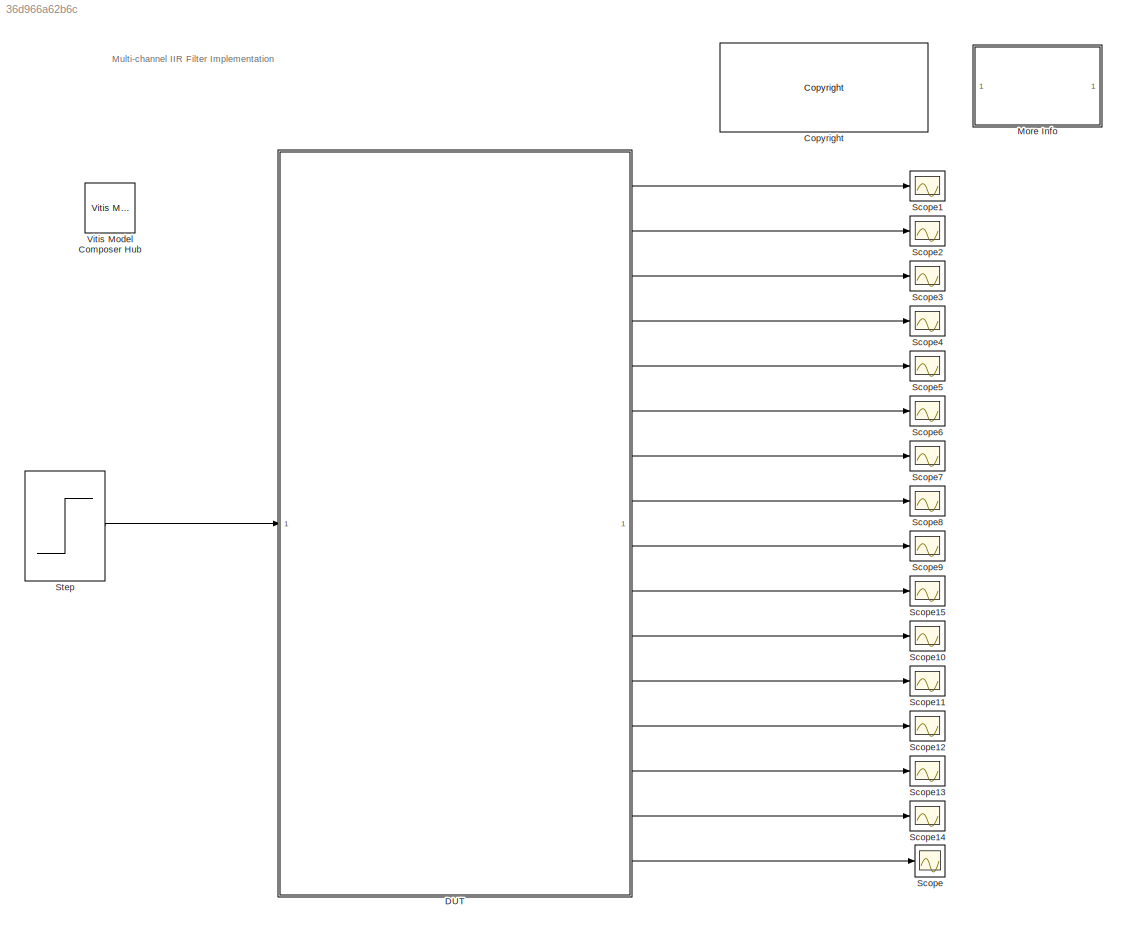
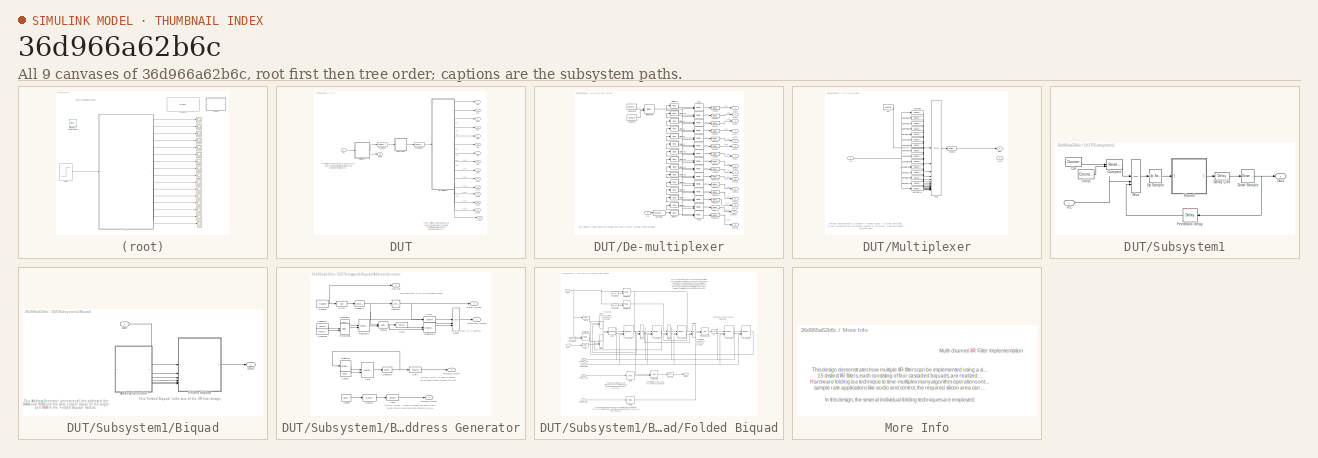
[diagram: thumbnail index - all 9 canvases of the model, root first then tree order]
MODEL slx_36d966a62b6c
KIND model
CONFIG AbsTol = auto
CONFIG EnableMultiTasking = on
CONFIG FixedStep = auto
CONFIG MaxStep = auto
CONFIG MinStep = auto
CONFIG PreLoadFcn = IIR_PreLoadFcn
CONFIG RelTol = 1e-3
CONFIG SampleTimeConstraint = Unconstrained
CONFIG SolverName = ode45
CONFIG StartTime = 0.0
CONFIG StopTime = 10000
BLOCK [Reference] <copyright redacted>
  SourceBlock = hdlUtilities/<copyright redacted>
  SourceType = Xilinx <copyright redacted>
BLOCK [SubSystem] DUT
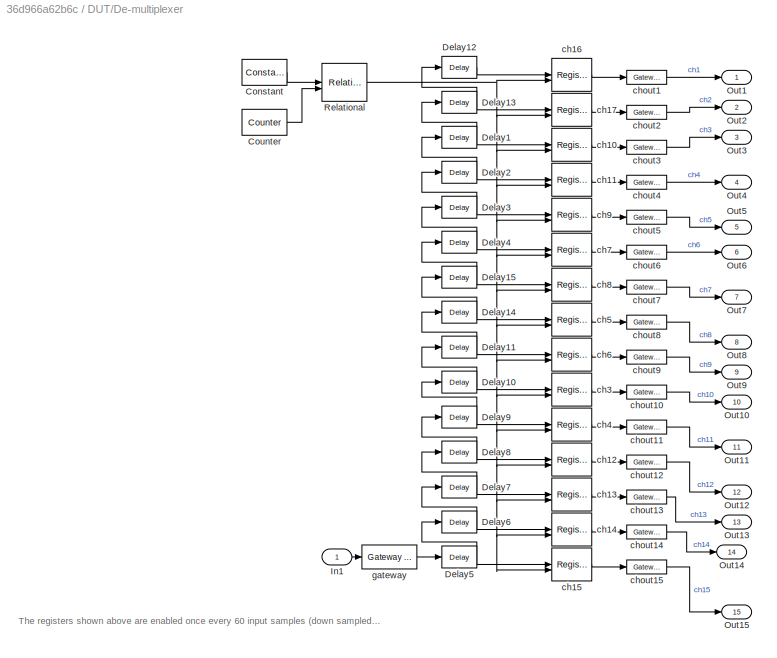
BLOCK [SubSystem] DUT/De-multiplexer
  NameLocation = right
  PortSchema = {"entries":[{"content":{"sides":[{"content":{"connectorIds":["In1"]},"type":"ConnectorPlacement.EquallySpacedRectSide","uuid":"3b4ff2fd-50a8-43bd-9bae-2460b1030825"},{"content":{"connectorIds":["Out1","Out2","Out3","Out4","Out5","Out6","Out7","Out8","Out9","Out10","Out11"],"side":"RIGHT"},"type":"ConnectorPlacement.EquallySpacedRectSide","uuid":"e1c9733d-22c8-4d91-9bdb-dd885a91145e"},{"content":{"...<+487ch>
BLOCK [Reference] DUT/De-multiplexer/Constant  REF=hdlBasic/Constant
  NameLocation = top
  SourceBlock = hdlBasic/Constant
  SourceType = Constant Block Block
BLOCK [Reference] DUT/De-multiplexer/Counter  REF=hdlBasic/Counter
  SourceBlock = hdlBasic/Counter
  SourceType = Counter Block
BLOCK [Reference] DUT/De-multiplexer/Delay1  REF=hdlBasic/Delay
  NameLocation = top
  SourceBlock = hdlBasic/Delay
  SourceType = Delay Block
BLOCK [Reference] DUT/De-multiplexer/Delay10  REF=hdlBasic/Delay
  NameLocation = top
  SourceBlock = hdlBasic/Delay
  SourceType = Delay Block
BLOCK [Reference] DUT/De-multiplexer/Delay11  REF=hdlBasic/Delay
  NameLocation = top
  SourceBlock = hdlBasic/Delay
  SourceType = Delay Block
BLOCK [Reference] DUT/De-multiplexer/Delay12  REF=hdlBasic/Delay
  NameLocation = top
  SourceBlock = hdlBasic/Delay
  SourceType = Delay Block
BLOCK [Reference] DUT/De-multiplexer/Delay13  REF=hdlBasic/Delay
  NameLocation = top
  SourceBlock = hdlBasic/Delay
  SourceType = Delay Block
BLOCK [Reference] DUT/De-multiplexer/Delay14  REF=hdlBasic/Delay
  NameLocation = top
  SourceBlock = hdlBasic/Delay
  SourceType = Delay Block
BLOCK [Reference] DUT/De-multiplexer/Delay15  REF=hdlBasic/Delay
  NameLocation = top
  SourceBlock = hdlBasic/Delay
  SourceType = Delay Block
BLOCK [Reference] DUT/De-multiplexer/Delay2  REF=hdlBasic/Delay
  NameLocation = top
  SourceBlock = hdlBasic/Delay
  SourceType = Delay Block
BLOCK [Reference] DUT/De-multiplexer/Delay3  REF=hdlBasic/Delay
  NameLocation = top
  SourceBlock = hdlBasic/Delay
  SourceType = Delay Block
BLOCK [Reference] DUT/De-multiplexer/Delay4  REF=hdlBasic/Delay
  NameLocation = top
  SourceBlock = hdlBasic/Delay
  SourceType = Delay Block
BLOCK [Reference] DUT/De-multiplexer/Delay5  REF=hdlBasic/Delay
  NameLocation = top
  SourceBlock = hdlBasic/Delay
  SourceType = Delay Block
BLOCK [Reference] DUT/De-multiplexer/Delay6  REF=hdlBasic/Delay
  NameLocation = top
  SourceBlock = hdlBasic/Delay
  SourceType = Delay Block
BLOCK [Reference] DUT/De-multiplexer/Delay7  REF=hdlBasic/Delay
  NameLocation = top
  SourceBlock = hdlBasic/Delay
  SourceType = Delay Block
BLOCK [Reference] DUT/De-multiplexer/Delay8  REF=hdlBasic/Delay
  NameLocation = top
  SourceBlock = hdlBasic/Delay
  SourceType = Delay Block
BLOCK [Reference] DUT/De-multiplexer/Delay9  REF=hdlBasic/Delay
  NameLocation = top
  SourceBlock = hdlBasic/Delay
  SourceType = Delay Block
BLOCK [Inport] DUT/De-multiplexer/In1
BLOCK [Outport] DUT/De-multiplexer/Out1
BLOCK [Outport] DUT/De-multiplexer/Out10
  Port = 10
BLOCK [Outport] DUT/De-multiplexer/Out11
  Port = 11
BLOCK [Outport] DUT/De-multiplexer/Out12
  Port = 12
BLOCK [Outport] DUT/De-multiplexer/Out13
  Port = 13
BLOCK [Outport] DUT/De-multiplexer/Out14
  Port = 14
BLOCK [Outport] DUT/De-multiplexer/Out15
  Port = 15
BLOCK [Outport] DUT/De-multiplexer/Out2
  Port = 2
BLOCK [Outport] DUT/De-multiplexer/Out3
  Port = 3
BLOCK [Outport] DUT/De-multiplexer/Out4
  Port = 4
BLOCK [Outport] DUT/De-multiplexer/Out5
  Port = 5
BLOCK [Outport] DUT/De-multiplexer/Out6
  Port = 6
BLOCK [Outport] DUT/De-multiplexer/Out7
  Port = 7
BLOCK [Outport] DUT/De-multiplexer/Out8
  Port = 8
BLOCK [Outport] DUT/De-multiplexer/Out9
  Port = 9
BLOCK [Reference] DUT/De-multiplexer/Relational  REF=hdlBasic/Relational
  SourceBlock = hdlBasic/Relational
  SourceType = Arithmetic Relational Operator Block
BLOCK [Reference] DUT/De-multiplexer/ch10  REF=hdlBasic/Register
  SourceBlock = hdlBasic/Register
  SourceType = Register Block
BLOCK [Reference] DUT/De-multiplexer/ch11  REF=hdlBasic/Register
  SourceBlock = hdlBasic/Register
  SourceType = Register Block
BLOCK [Reference] DUT/De-multiplexer/ch12  REF=hdlBasic/Register
  SourceBlock = hdlBasic/Register
  SourceType = Register Block
BLOCK [Reference] DUT/De-multiplexer/ch13  REF=hdlBasic/Register
  SourceBlock = hdlBasic/Register
  SourceType = Register Block
BLOCK [Reference] DUT/De-multiplexer/ch14  REF=hdlBasic/Register
  SourceBlock = hdlBasic/Register
  SourceType = Register Block
BLOCK [Reference] DUT/De-multiplexer/ch15  REF=hdlBasic/Register
  SourceBlock = hdlBasic/Register
  SourceType = Register Block
BLOCK [Reference] DUT/De-multiplexer/ch16  REF=hdlBasic/Register
  SourceBlock = hdlBasic/Register
  SourceType = Register Block
BLOCK [Reference] DUT/De-multiplexer/ch17  REF=hdlBasic/Register
  SourceBlock = hdlBasic/Register
  SourceType = Register Block
BLOCK [Reference] DUT/De-multiplexer/ch3  REF=hdlBasic/Register
  SourceBlock = hdlBasic/Register
  SourceType = Register Block
BLOCK [Reference] DUT/De-multiplexer/ch4  REF=hdlBasic/Register
  SourceBlock = hdlBasic/Register
  SourceType = Register Block
BLOCK [Reference] DUT/De-multiplexer/ch5  REF=hdlBasic/Register
  SourceBlock = hdlBasic/Register
  SourceType = Register Block
BLOCK [Reference] DUT/De-multiplexer/ch6  REF=hdlBasic/Register
  SourceBlock = hdlBasic/Register
  SourceType = Register Block
BLOCK [Reference] DUT/De-multiplexer/ch7  REF=hdlBasic/Register
  SourceBlock = hdlBasic/Register
  SourceType = Register Block
BLOCK [Reference] DUT/De-multiplexer/ch8  REF=hdlBasic/Register
  SourceBlock = hdlBasic/Register
  SourceType = Register Block
BLOCK [Reference] DUT/De-multiplexer/ch9  REF=hdlBasic/Register
  SourceBlock = hdlBasic/Register
  SourceType = Register Block
BLOCK [Reference] DUT/De-multiplexer/chout1  REF=hdlBasic/Gateway Out
  SourceBlock = hdlBasic/Gateway Out
  SourceType = Gateway Out Block
BLOCK [Reference] DUT/De-multiplexer/chout10  REF=hdlBasic/Gateway Out
  SourceBlock = hdlBasic/Gateway Out
  SourceType = Gateway Out Block
BLOCK [Reference] DUT/De-multiplexer/chout11  REF=hdlBasic/Gateway Out
  SourceBlock = hdlBasic/Gateway Out
  SourceType = Gateway Out Block
BLOCK [Reference] DUT/De-multiplexer/chout12  REF=hdlBasic/Gateway Out
  SourceBlock = hdlBasic/Gateway Out
  SourceType = Gateway Out Block
BLOCK [Reference] DUT/De-multiplexer/chout13  REF=hdlBasic/Gateway Out
  SourceBlock = hdlBasic/Gateway Out
  SourceType = Gateway Out Block
BLOCK [Reference] DUT/De-multiplexer/chout14  REF=hdlBasic/Gateway Out
  SourceBlock = hdlBasic/Gateway Out
  SourceType = Gateway Out Block
BLOCK [Reference] DUT/De-multiplexer/chout15  REF=hdlBasic/Gateway Out
  SourceBlock = hdlBasic/Gateway Out
  SourceType = Gateway Out Block
BLOCK [Reference] DUT/De-multiplexer/chout2  REF=hdlBasic/Gateway Out
  SourceBlock = hdlBasic/Gateway Out
  SourceType = Gateway Out Block
BLOCK [Reference] DUT/De-multiplexer/chout3  REF=hdlBasic/Gateway Out
  SourceBlock = hdlBasic/Gateway Out
  SourceType = Gateway Out Block
BLOCK [Reference] DUT/De-multiplexer/chout4  REF=hdlBasic/Gateway Out
  SourceBlock = hdlBasic/Gateway Out
  SourceType = Gateway Out Block
BLOCK [Reference] DUT/De-multiplexer/chout5  REF=hdlBasic/Gateway Out
  SourceBlock = hdlBasic/Gateway Out
  SourceType = Gateway Out Block
BLOCK [Reference] DUT/De-multiplexer/chout6  REF=hdlBasic/Gateway Out
  SourceBlock = hdlBasic/Gateway Out
  SourceType = Gateway Out Block
BLOCK [Reference] DUT/De-multiplexer/chout7  REF=hdlBasic/Gateway Out
  SourceBlock = hdlBasic/Gateway Out
  SourceType = Gateway Out Block
BLOCK [Reference] DUT/De-multiplexer/chout8  REF=hdlBasic/Gateway Out
  SourceBlock = hdlBasic/Gateway Out
  SourceType = Gateway Out Block
BLOCK [Reference] DUT/De-multiplexer/chout9  REF=hdlBasic/Gateway Out
  SourceBlock = hdlBasic/Gateway Out
  SourceType = Gateway Out Block
BLOCK [Reference] DUT/De-multiplexer/gateway  REF=hdlBasic/Gateway In
  NameLocation = top
  SourceBlock = hdlBasic/Gateway In
  SourceType = Gateway In Block
BLOCK [Inport] DUT/In1
BLOCK [SubSystem] DUT/Multiplexer
BLOCK [Reference] DUT/Multiplexer/Cnt  REF=hdlBasic/Counter
  SourceBlock = hdlBasic/Counter
  SourceType = Counter Block
BLOCK [Outport] DUT/Multiplexer/Dout
  VectorParamsAs1DForOutWhenUnconnected = off
BLOCK [Inport] DUT/Multiplexer/In1
BLOCK [Outport] DUT/Multiplexer/Out2
  Port = 2
BLOCK [Reference] DUT/Multiplexer/chout5  REF=hdlBasic/Gateway Out
  SourceBlock = hdlBasic/Gateway Out
  SourceType = Gateway Out Block
BLOCK [Reference] DUT/Multiplexer/gateway  REF=hdlBasic/Gateway In
  NameLocation = top
  SourceBlock = hdlBasic/Gateway In
  SourceType = Gateway In Block
BLOCK [Reference] DUT/Multiplexer/gateway1  REF=hdlBasic/Gateway In
  NameLocation = top
  SourceBlock = hdlBasic/Gateway In
  SourceType = Gateway In Block
BLOCK [Reference] DUT/Multiplexer/gateway10  REF=hdlBasic/Gateway In
  NameLocation = top
  SourceBlock = hdlBasic/Gateway In
  SourceType = Gateway In Block
BLOCK [Reference] DUT/Multiplexer/gateway11  REF=hdlBasic/Gateway In
  NameLocation = top
  SourceBlock = hdlBasic/Gateway In
  SourceType = Gateway In Block
BLOCK [Reference] DUT/Multiplexer/gateway12  REF=hdlBasic/Gateway In
  NameLocation = top
  SourceBlock = hdlBasic/Gateway In
  SourceType = Gateway In Block
BLOCK [Reference] DUT/Multiplexer/gateway13  REF=hdlBasic/Gateway In
  NameLocation = top
  SourceBlock = hdlBasic/Gateway In
  SourceType = Gateway In Block
BLOCK [Reference] DUT/Multiplexer/gateway14  REF=hdlBasic/Gateway In
  NameLocation = top
  SourceBlock = hdlBasic/Gateway In
  SourceType = Gateway In Block
BLOCK [Reference] DUT/Multiplexer/gateway2  REF=hdlBasic/Gateway In
  NameLocation = top
  SourceBlock = hdlBasic/Gateway In
  SourceType = Gateway In Block
BLOCK [Reference] DUT/Multiplexer/gateway3  REF=hdlBasic/Gateway In
  NameLocation = top
  SourceBlock = hdlBasic/Gateway In
  SourceType = Gateway In Block
BLOCK [Reference] DUT/Multiplexer/gateway4  REF=hdlBasic/Gateway In
  NameLocation = top
  SourceBlock = hdlBasic/Gateway In
  SourceType = Gateway In Block
BLOCK [Reference] DUT/Multiplexer/gateway5  REF=hdlBasic/Gateway In
  NameLocation = top
  SourceBlock = hdlBasic/Gateway In
  SourceType = Gateway In Block
BLOCK [Reference] DUT/Multiplexer/gateway6  REF=hdlBasic/Gateway In
  NameLocation = top
  SourceBlock = hdlBasic/Gateway In
  SourceType = Gateway In Block
BLOCK [Reference] DUT/Multiplexer/gateway7  REF=hdlBasic/Gateway In
  NameLocation = top
  SourceBlock = hdlBasic/Gateway In
  SourceType = Gateway In Block
BLOCK [Reference] DUT/Multiplexer/gateway8  REF=hdlBasic/Gateway In
  NameLocation = top
  SourceBlock = hdlBasic/Gateway In
  SourceType = Gateway In Block
BLOCK [Reference] DUT/Multiplexer/gateway9  REF=hdlBasic/Gateway In
  NameLocation = top
  SourceBlock = hdlBasic/Gateway In
  SourceType = Gateway In Block
BLOCK [Reference] DUT/Multiplexer/mux  REF=hdlBasic/Mux
  SourceBlock = hdlBasic/Mux
  SourceType = Bus Multiplexer Block
BLOCK [Outport] DUT/Out16
  Port = 16
BLOCK [SubSystem] DUT/Subsystem1
BLOCK [SubSystem] DUT/Subsystem1/Biquad
BLOCK [SubSystem] DUT/Subsystem1/Biquad/Address Generator
BLOCK [Reference] DUT/Subsystem1/Biquad/Address Generator/ASR  REF=hdlBasic/Addressable Shift Register
  SourceBlock = hdlBasic/Addressable Shift Register
  SourceType = Addressable Shift Register Block
BLOCK [Reference] DUT/Subsystem1/Biquad/Address Generator/Cnt1  REF=hdlBasic/Counter
  NameLocation = top
  SourceBlock = hdlBasic/Counter
  SourceType = Counter Block
BLOCK [Reference] DUT/Subsystem1/Biquad/Address Generator/Cnt3  REF=hdlBasic/Counter
  SourceBlock = hdlBasic/Counter
  SourceType = Counter Block
BLOCK [Reference] DUT/Subsystem1/Biquad/Address Generator/Cnt4  REF=hdlBasic/Counter
  SourceBlock = hdlBasic/Counter
  SourceType = Counter Block
BLOCK [Reference] DUT/Subsystem1/Biquad/Address Generator/Cnt5  REF=hdlBasic/Counter
  NameLocation = top
  SourceBlock = hdlBasic/Counter
  SourceType = Counter Block
BLOCK [Outport] DUT/Subsystem1/Biquad/Address Generator/Cnt_Out
  VectorParamsAs1DForOutWhenUnconnected = off
BLOCK [Reference] DUT/Subsystem1/Biquad/Address Generator/Const  REF=hdlBasic/Constant
  SourceBlock = hdlBasic/Constant
  SourceType = Constant Block Block
BLOCK [Reference] DUT/Subsystem1/Biquad/Address Generator/Const1  REF=hdlBasic/Constant
  SourceBlock = hdlBasic/Constant
  SourceType = Constant Block Block
BLOCK [Reference] DUT/Subsystem1/Biquad/Address Generator/Constant  REF=hdlBasic/Constant
  SourceBlock = hdlBasic/Constant
  SourceType = Constant Block Block
BLOCK [Reference] DUT/Subsystem1/Biquad/Address Generator/Constant1  REF=hdlBasic/Constant
  NameLocation = top
  SourceBlock = hdlBasic/Constant
  SourceType = Constant Block Block
BLOCK [Reference] DUT/Subsystem1/Biquad/Address Generator/Convert1  REF=hdlBasic/Convert
  SourceBlock = hdlBasic/Convert
  SourceType = Type Converter Block
BLOCK [Reference] DUT/Subsystem1/Biquad/Address Generator/Convert2  REF=hdlBasic/Convert
  SourceBlock = hdlBasic/Convert
  SourceType = Type Converter Block
BLOCK [Reference] DUT/Subsystem1/Biquad/Address Generator/Counter  REF=hdlBasic/Counter
  SourceBlock = hdlBasic/Counter
  SourceType = Counter Block
BLOCK [Reference] DUT/Subsystem1/Biquad/Address Generator/Counter1  REF=hdlBasic/Counter
  NameLocation = top
  SourceBlock = hdlBasic/Counter
  SourceType = Counter Block
BLOCK [Reference] DUT/Subsystem1/Biquad/Address Generator/Delay2  REF=hdlBasic/Delay
  SourceBlock = hdlBasic/Delay
  SourceType = Delay Block
BLOCK [Reference] DUT/Subsystem1/Biquad/Address Generator/Inverter1  REF=hdlBasic/Inverter
  SourceBlock = hdlBasic/Inverter
  SourceType = Inverter Block
BLOCK [Reference] DUT/Subsystem1/Biquad/Address Generator/Logical  REF=hdlBasic/Logical
  SourceBlock = hdlBasic/Logical
  SourceType = Logical Block Block
BLOCK [Reference] DUT/Subsystem1/Biquad/Address Generator/Mux3  REF=hdlBasic/Mux
  SourceBlock = hdlBasic/Mux
  SourceType = Bus Multiplexer Block
BLOCK [Outport] DUT/Subsystem1/Biquad/Address Generator/ROM1_ADDR
  Port = 4
  VectorParamsAs1DForOutWhenUnconnected = off
BLOCK [Outport] DUT/Subsystem1/Biquad/Address Generator/ROM2_ADDR
  Port = 5
  VectorParamsAs1DForOutWhenUnconnected = off
BLOCK [Reference] DUT/Subsystem1/Biquad/Address Generator/Register  REF=hdlBasic/Register
  NameLocation = top
  SourceBlock = hdlBasic/Register
  SourceType = Register Block
BLOCK [Reference] DUT/Subsystem1/Biquad/Address Generator/Register1  REF=hdlBasic/Register
  SourceBlock = hdlBasic/Register
  SourceType = Register Block
BLOCK [Reference] DUT/Subsystem1/Biquad/Address Generator/Register2  REF=hdlBasic/Register
  SourceBlock = hdlBasic/Register
  SourceType = Register Block
BLOCK [Reference] DUT/Subsystem1/Biquad/Address Generator/Relational  REF=hdlBasic/Relational
  SourceBlock = hdlBasic/Relational
  SourceType = Arithmetic Relational Operator Block
BLOCK [Outport] DUT/Subsystem1/Biquad/Address Generator/SPRAM_ADDR
  Port = 2
  VectorParamsAs1DForOutWhenUnconnected = off
BLOCK [Outport] DUT/Subsystem1/Biquad/Address Generator/SPRAM_WE
  Port = 3
  VectorParamsAs1DForOutWhenUnconnected = off
BLOCK [Reference] DUT/Subsystem1/Biquad/Address Generator/Slice  REF=hdlBasic/Slice
  SourceBlock = hdlBasic/Slice
  SourceType = Bit Slice Extractor Block
BLOCK [Inport] DUT/Subsystem1/Biquad/Din
BLOCK [Outport] DUT/Subsystem1/Biquad/Dout
  VectorParamsAs1DForOutWhenUnconnected = off
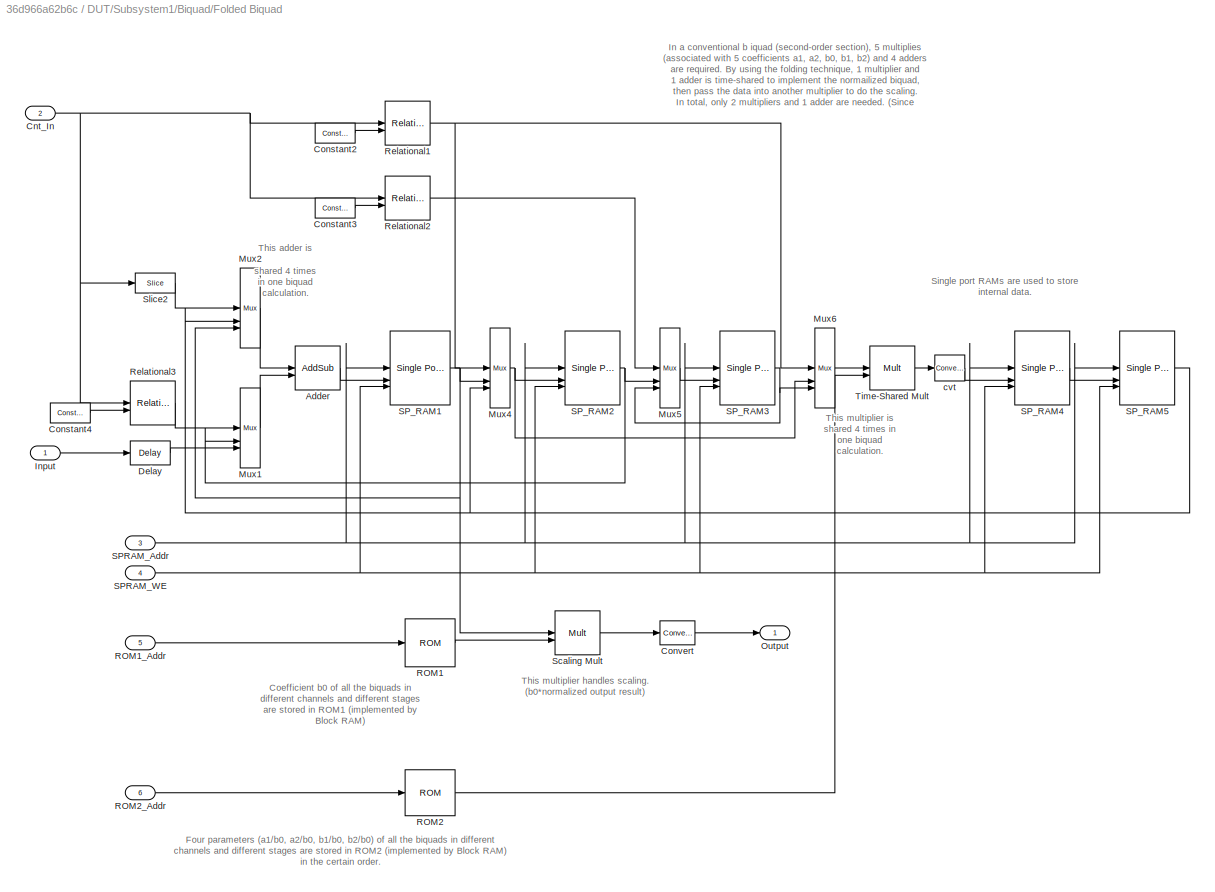
BLOCK [SubSystem] DUT/Subsystem1/Biquad/Folded Biquad
BLOCK [Reference] DUT/Subsystem1/Biquad/Folded Biquad/Adder  REF=hdlBasic/AddSub
  SourceBlock = hdlBasic/AddSub
  SourceType = Adder/Subtracter Block
BLOCK [Inport] DUT/Subsystem1/Biquad/Folded Biquad/Cnt_In
  Port = 2
BLOCK [Reference] DUT/Subsystem1/Biquad/Folded Biquad/Constant2  REF=hdlBasic/Constant
  SourceBlock = hdlBasic/Constant
  SourceType = Constant Block Block
BLOCK [Reference] DUT/Subsystem1/Biquad/Folded Biquad/Constant3  REF=hdlBasic/Constant
  SourceBlock = hdlBasic/Constant
  SourceType = Constant Block Block
BLOCK [Reference] DUT/Subsystem1/Biquad/Folded Biquad/Constant4  REF=hdlBasic/Constant
  SourceBlock = hdlBasic/Constant
  SourceType = Constant Block Block
BLOCK [Reference] DUT/Subsystem1/Biquad/Folded Biquad/Convert  REF=hdlBasic/Convert
  SourceBlock = hdlBasic/Convert
  SourceType = Type Converter Block
BLOCK [Reference] DUT/Subsystem1/Biquad/Folded Biquad/Delay  REF=hdlBasic/Delay
  SourceBlock = hdlBasic/Delay
  SourceType = Delay Block
BLOCK [Inport] DUT/Subsystem1/Biquad/Folded Biquad/Input
BLOCK [Reference] DUT/Subsystem1/Biquad/Folded Biquad/Mux1  REF=hdlBasic/Mux
  NameLocation = top
  SourceBlock = hdlBasic/Mux
  SourceType = Bus Multiplexer Block
BLOCK [Reference] DUT/Subsystem1/Biquad/Folded Biquad/Mux2  REF=hdlBasic/Mux
  NameLocation = top
  SourceBlock = hdlBasic/Mux
  SourceType = Bus Multiplexer Block
BLOCK [Reference] DUT/Subsystem1/Biquad/Folded Biquad/Mux4  REF=hdlBasic/Mux
  NameLocation = top
  SourceBlock = hdlBasic/Mux
  SourceType = Bus Multiplexer Block
BLOCK [Reference] DUT/Subsystem1/Biquad/Folded Biquad/Mux5  REF=hdlBasic/Mux
  NameLocation = top
  SourceBlock = hdlBasic/Mux
  SourceType = Bus Multiplexer Block
BLOCK [Reference] DUT/Subsystem1/Biquad/Folded Biquad/Mux6  REF=hdlBasic/Mux
  NameLocation = top
  SourceBlock = hdlBasic/Mux
  SourceType = Bus Multiplexer Block
BLOCK [Outport] DUT/Subsystem1/Biquad/Folded Biquad/Output
  VectorParamsAs1DForOutWhenUnconnected = off
BLOCK [Reference] DUT/Subsystem1/Biquad/Folded Biquad/ROM1  REF=hdlBasic/ROM
  SourceBlock = hdlBasic/ROM
  SourceType = Single Port Read-Only Memory Block
BLOCK [Inport] DUT/Subsystem1/Biquad/Folded Biquad/ROM1_Addr
  Port = 5
BLOCK [Reference] DUT/Subsystem1/Biquad/Folded Biquad/ROM2  REF=hdlBasic/ROM
  SourceBlock = hdlBasic/ROM
  SourceType = Single Port Read-Only Memory Block
BLOCK [Inport] DUT/Subsystem1/Biquad/Folded Biquad/ROM2_Addr
  Port = 6
BLOCK [Reference] DUT/Subsystem1/Biquad/Folded Biquad/Relational1  REF=hdlBasic/Relational
  SourceBlock = hdlBasic/Relational
  SourceType = Arithmetic Relational Operator Block
BLOCK [Reference] DUT/Subsystem1/Biquad/Folded Biquad/Relational2  REF=hdlBasic/Relational
  SourceBlock = hdlBasic/Relational
  SourceType = Arithmetic Relational Operator Block
BLOCK [Reference] DUT/Subsystem1/Biquad/Folded Biquad/Relational3  REF=hdlBasic/Relational
  SourceBlock = hdlBasic/Relational
  SourceType = Arithmetic Relational Operator Block
BLOCK [Inport] DUT/Subsystem1/Biquad/Folded Biquad/SPRAM_Addr
  Port = 3
BLOCK [Inport] DUT/Subsystem1/Biquad/Folded Biquad/SPRAM_WE
  Port = 4
BLOCK [Reference] DUT/Subsystem1/Biquad/Folded Biquad/SP_RAM1  REF=hdlBasic/Single Port RAM
  SourceBlock = hdlBasic/Single Port RAM
  SourceType = Single Port Random Access Memory Block
BLOCK [Reference] DUT/Subsystem1/Biquad/Folded Biquad/SP_RAM2  REF=hdlBasic/Single Port RAM
  SourceBlock = hdlBasic/Single Port RAM
  SourceType = Single Port Random Access Memory Block
BLOCK [Reference] DUT/Subsystem1/Biquad/Folded Biquad/SP_RAM3  REF=hdlBasic/Single Port RAM
  SourceBlock = hdlBasic/Single Port RAM
  SourceType = Single Port Random Access Memory Block
BLOCK [Reference] DUT/Subsystem1/Biquad/Folded Biquad/SP_RAM4  REF=hdlBasic/Single Port RAM
  SourceBlock = hdlBasic/Single Port RAM
  SourceType = Single Port Random Access Memory Block
BLOCK [Reference] DUT/Subsystem1/Biquad/Folded Biquad/SP_RAM5  REF=hdlBasic/Single Port RAM
  SourceBlock = hdlBasic/Single Port RAM
  SourceType = Single Port Random Access Memory Block
BLOCK [Reference] DUT/Subsystem1/Biquad/Folded Biquad/Scaling Mult  REF=hdlBasic/Mult
  SourceBlock = hdlBasic/Mult
  SourceType = Multiplier Block
BLOCK [Reference] DUT/Subsystem1/Biquad/Folded Biquad/Slice2  REF=hdlBasic/Slice
  SourceBlock = hdlBasic/Slice
  SourceType = Bit Slice Extractor Block
BLOCK [Reference] DUT/Subsystem1/Biquad/Folded Biquad/Time-Shared Mult  REF=hdlBasic/Mult
  SourceBlock = hdlBasic/Mult
  SourceType = Multiplier Block
BLOCK [Reference] DUT/Subsystem1/Biquad/Folded Biquad/cvt  REF=hdlBasic/Convert
  SourceBlock = hdlBasic/Convert
  SourceType = Type Converter Block
BLOCK [Reference] DUT/Subsystem1/Cnt  REF=hdlBasic/Counter
  SourceBlock = hdlBasic/Counter
  SourceType = Counter Block
BLOCK [Reference] DUT/Subsystem1/Compare  REF=hdlBasic/Relational
  SourceBlock = hdlBasic/Relational
  SourceType = Arithmetic Relational Operator Block
BLOCK [Reference] DUT/Subsystem1/Delay Line  REF=hdlBasic/Delay
  SourceBlock = hdlBasic/Delay
  SourceType = Delay Block
BLOCK [Reference] DUT/Subsystem1/Down Sample  REF=hdlBasic/Down Sample
  SourceBlock = hdlBasic/Down Sample
  SourceType = Down Sampler Block
BLOCK [Reference] DUT/Subsystem1/Feedback delay  REF=hdlBasic/Delay
  SourceBlock = hdlBasic/Delay
  SourceType = Delay Block
BLOCK [Inport] DUT/Subsystem1/In1
BLOCK [Reference] DUT/Subsystem1/Mux  REF=hdlBasic/Mux
  SourceBlock = hdlBasic/Mux
  SourceType = Bus Multiplexer Block
BLOCK [Outport] DUT/Subsystem1/Out1
BLOCK [Reference] DUT/Subsystem1/Up Sample  REF=hdlBasic/Up Sample
  SourceBlock = hdlBasic/Up Sample
  SourceType = Up Sampler Block
BLOCK [Reference] DUT/Subsystem1/const  REF=hdlBasic/Constant
  NameLocation = top
  SourceBlock = hdlBasic/Constant
  SourceType = Constant Block Block
BLOCK [Outport] DUT/ch1
BLOCK [Outport] DUT/ch10
  Port = 10
BLOCK [Outport] DUT/ch11
  Port = 11
BLOCK [Outport] DUT/ch12
  Port = 12
BLOCK [Outport] DUT/ch13
  Port = 13
BLOCK [Outport] DUT/ch14
  Port = 14
BLOCK [Outport] DUT/ch15
  Port = 15
BLOCK [Outport] DUT/ch2
  Port = 2
BLOCK [Outport] DUT/ch3
  Port = 3
BLOCK [Outport] DUT/ch4
  Port = 4
BLOCK [Outport] DUT/ch5
  Port = 5
BLOCK [Outport] DUT/ch6
  Port = 6
BLOCK [Outport] DUT/ch7
  Port = 7
BLOCK [Outport] DUT/ch8
  Port = 8
BLOCK [Outport] DUT/ch9
  Port = 9
BLOCK [Reference] DUT/serial input  REF=hdlBasic/Gateway In
  SourceBlock = hdlBasic/Gateway In
  SourceType = Gateway In Block
BLOCK [Reference] DUT/serial output  REF=hdlBasic/Gateway Out
  SourceBlock = hdlBasic/Gateway Out
  SourceType = Gateway Out Block
BLOCK [SubSystem] More Info
BLOCK [Scope] Scope
  Floating = off
  NumInputPorts = 1
  ScopeSpecificationString = Simulink.scopes.TimeScopeBlockCfg('CurrentConfiguration', extmgr.ConfigurationSet(extmgr.Configuration('Core','General UI',true),extmgr.Configuration('Sources','WiredSimulink',true,'DataLoggingVariableName','ScopeData15','DataLoggingLimitDataPoints',true,'DataLoggingDecimateData',true,'DataLoggingDecimation','1','DataLoggingSaveFormat','Structure With Time'),extmgr.Configuration('Visuals','Time Do...<+1492ch>
BLOCK [Scope] Scope1
  Floating = off
  NumInputPorts = 1
  ScopeSpecificationString = Simulink.scopes.TimeScopeBlockCfg('CurrentConfiguration', extmgr.ConfigurationSet(extmgr.Configuration('Core','General UI',true),extmgr.Configuration('Sources','WiredSimulink',true,'DataLoggingVariableName','ScopeData1','DataLoggingLimitDataPoints',true,'DataLoggingDecimateData',true,'DataLoggingDecimation','1','DataLoggingSaveFormat','Structure With Time'),extmgr.Configuration('Visuals','Time Dom...<+1489ch>
BLOCK [Scope] Scope10
  Floating = off
  NumInputPorts = 1
  ScopeSpecificationString = Simulink.scopes.TimeScopeBlockCfg('CurrentConfiguration', extmgr.ConfigurationSet(extmgr.Configuration('Core','General UI',true),extmgr.Configuration('Sources','WiredSimulink',true,'DataLoggingVariableName','ScopeData2','DataLoggingLimitDataPoints',true,'DataLoggingDecimateData',true,'DataLoggingDecimation','1','DataLoggingSaveFormat','Structure With Time'),extmgr.Configuration('Visuals','Time Dom...<+1491ch>
BLOCK [Scope] Scope11
  Floating = off
  NumInputPorts = 1
  ScopeSpecificationString = Simulink.scopes.TimeScopeBlockCfg('CurrentConfiguration', extmgr.ConfigurationSet(extmgr.Configuration('Core','General UI',true),extmgr.Configuration('Sources','WiredSimulink',true,'DataLoggingVariableName','ScopeData3','DataLoggingLimitDataPoints',true,'DataLoggingDecimateData',true,'DataLoggingDecimation','1','DataLoggingSaveFormat','Structure With Time'),extmgr.Configuration('Visuals','Time Dom...<+1491ch>
BLOCK [Scope] Scope12
  Floating = off
  NumInputPorts = 1
  ScopeSpecificationString = Simulink.scopes.TimeScopeBlockCfg('CurrentConfiguration', extmgr.ConfigurationSet(extmgr.Configuration('Core','General UI',true),extmgr.Configuration('Sources','WiredSimulink',true,'DataLoggingVariableName','ScopeData4','DataLoggingLimitDataPoints',true,'DataLoggingDecimateData',true,'DataLoggingDecimation','1','DataLoggingSaveFormat','Structure With Time'),extmgr.Configuration('Visuals','Time Dom...<+1491ch>
BLOCK [Scope] Scope13
  Floating = off
  NumInputPorts = 1
  ScopeSpecificationString = Simulink.scopes.TimeScopeBlockCfg('CurrentConfiguration', extmgr.ConfigurationSet(extmgr.Configuration('Core','General UI',true),extmgr.Configuration('Sources','WiredSimulink',true,'DataLoggingVariableName','ScopeData5','DataLoggingLimitDataPoints',true,'DataLoggingDecimateData',true,'DataLoggingDecimation','1','DataLoggingSaveFormat','Structure With Time'),extmgr.Configuration('Visuals','Time Dom...<+1495ch>
BLOCK [Scope] Scope14
  Floating = off
  NumInputPorts = 1
  ScopeSpecificationString = Simulink.scopes.TimeScopeBlockCfg('CurrentConfiguration', extmgr.ConfigurationSet(extmgr.Configuration('Core','General UI',true),extmgr.Configuration('Sources','WiredSimulink',true,'DataLoggingVariableName','ScopeData6','DataLoggingLimitDataPoints',true,'DataLoggingDecimateData',true,'DataLoggingDecimation','1','DataLoggingSaveFormat','Structure With Time'),extmgr.Configuration('Visuals','Time Dom...<+1494ch>
BLOCK [Scope] Scope15
  Floating = off
  NumInputPorts = 1
  ScopeSpecificationString = Simulink.scopes.TimeScopeBlockCfg('CurrentConfiguration', extmgr.ConfigurationSet(extmgr.Configuration('Core','General UI',true),extmgr.Configuration('Sources','WiredSimulink',true,'DataLoggingVariableName','ScopeData7','DataLoggingLimitDataPoints',true,'DataLoggingDecimateData',true,'DataLoggingDecimation','1','DataLoggingSaveFormat','Structure With Time'),extmgr.Configuration('Visuals','Time Dom...<+1491ch>
BLOCK [Scope] Scope2
  Floating = off
  NumInputPorts = 1
  ScopeSpecificationString = Simulink.scopes.TimeScopeBlockCfg('CurrentConfiguration', extmgr.ConfigurationSet(extmgr.Configuration('Core','General UI',true),extmgr.Configuration('Sources','WiredSimulink',true,'DataLoggingVariableName','ScopeData8','DataLoggingLimitDataPoints',true,'DataLoggingDecimateData',true,'DataLoggingDecimation','1','DataLoggingSaveFormat','Structure With Time'),extmgr.Configuration('Visuals','Time Dom...<+1491ch>
BLOCK [Scope] Scope3
  Floating = off
  NumInputPorts = 1
  ScopeSpecificationString = Simulink.scopes.TimeScopeBlockCfg('CurrentConfiguration', extmgr.ConfigurationSet(extmgr.Configuration('Core','General UI',true),extmgr.Configuration('Sources','WiredSimulink',true,'DataLoggingVariableName','ScopeData9','DataLoggingLimitDataPoints',true,'DataLoggingDecimateData',true,'DataLoggingDecimation','1','DataLoggingSaveFormat','Structure With Time'),extmgr.Configuration('Visuals','Time Dom...<+1491ch>
BLOCK [Scope] Scope4
  Floating = off
  NumInputPorts = 1
  ScopeSpecificationString = Simulink.scopes.TimeScopeBlockCfg('CurrentConfiguration', extmgr.ConfigurationSet(extmgr.Configuration('Core','General UI',true),extmgr.Configuration('Sources','WiredSimulink',true,'DataLoggingVariableName','ScopeData10','DataLoggingLimitDataPoints',true,'DataLoggingDecimateData',true,'DataLoggingDecimation','1','DataLoggingSaveFormat','Structure With Time'),extmgr.Configuration('Visuals','Time Do...<+1492ch>
BLOCK [Scope] Scope5
  Floating = off
  NumInputPorts = 1
  ScopeSpecificationString = Simulink.scopes.TimeScopeBlockCfg('CurrentConfiguration', extmgr.ConfigurationSet(extmgr.Configuration('Core','General UI',true),extmgr.Configuration('Sources','WiredSimulink',true,'DataLoggingVariableName','ScopeData11','DataLoggingLimitDataPoints',true,'DataLoggingDecimateData',true,'DataLoggingDecimation','1','DataLoggingSaveFormat','Structure With Time'),extmgr.Configuration('Visuals','Time Do...<+1492ch>
BLOCK [Scope] Scope6
  Floating = off
  NumInputPorts = 1
  ScopeSpecificationString = Simulink.scopes.TimeScopeBlockCfg('CurrentConfiguration', extmgr.ConfigurationSet(extmgr.Configuration('Core','General UI',true),extmgr.Configuration('Sources','WiredSimulink',true,'DataLoggingVariableName','ScopeData12','DataLoggingLimitDataPoints',true,'DataLoggingDecimateData',true,'DataLoggingDecimation','1','DataLoggingSaveFormat','Structure With Time'),extmgr.Configuration('Visuals','Time Do...<+1492ch>
BLOCK [Scope] Scope7
  Floating = off
  NumInputPorts = 1
  ScopeSpecificationString = Simulink.scopes.TimeScopeBlockCfg('CurrentConfiguration', extmgr.ConfigurationSet(extmgr.Configuration('Core','General UI',true),extmgr.Configuration('Sources','WiredSimulink',true,'DataLoggingVariableName','ScopeData13','DataLoggingLimitDataPoints',true,'DataLoggingDecimateData',true,'DataLoggingDecimation','1','DataLoggingSaveFormat','Structure With Time'),extmgr.Configuration('Visuals','Time Do...<+1492ch>
BLOCK [Scope] Scope8
  Floating = off
  NumInputPorts = 1
  ScopeSpecificationString = Simulink.scopes.TimeScopeBlockCfg('CurrentConfiguration', extmgr.ConfigurationSet(extmgr.Configuration('Core','General UI',true),extmgr.Configuration('Sources','WiredSimulink',true,'DataLoggingVariableName','ScopeData14','DataLoggingLimitDataPoints',true,'DataLoggingDecimateData',true,'DataLoggingDecimation','1','DataLoggingSaveFormat','Structure With Time'),extmgr.Configuration('Visuals','Time Do...<+1492ch>
BLOCK [Scope] Scope9
  Floating = off
  NumInputPorts = 1
  ScopeSpecificationString = Simulink.scopes.TimeScopeBlockCfg('CurrentConfiguration', extmgr.ConfigurationSet(extmgr.Configuration('Core','General UI',true),extmgr.Configuration('Sources','WiredSimulink',true,'DataLoggingLimitDataPoints',true,'DataLoggingDecimateData',true,'DataLoggingDecimation','1','DataLoggingSaveFormat','Structure With Time'),extmgr.Configuration('Visuals','Time Domain',true,'SerializedDisplays',{struct(...<+1452ch>
BLOCK [Step] Step
  After = 0
  Before = 1
  SampleTime = 5
  Time = 300
BLOCK [Reference] Vitis Model Composer Hub  REF=vmcUtilities/Vitis Model Composer Hub
  SourceBlock = vmcUtilities/Vitis Model Composer Hub
  SourceType = VMC Hub
  Tag = genX
  UserDataPersistent = on
ANNOTATION (root): Multi-channel IIR Filter Implementation
ANNOTATION DUT: The De-multiplexer Block indicates one way to retrieve the multi-channel data from the filter. It is not intended to be implemented in the FPGA.
ANNOTATION DUT: The Multiplexer Block indicates one way to present multi-channel input to the filter. It is not intended to be implemented in the FPGA.
ANNOTATION DUT/De-multiplexer: The registers shown above are enabled once every 60 input samples (down sampled by 60).
ANNOTATION DUT/Multiplexer: The input sample period is 15 channels * 4 biquad stages * 5 system clocks/biquad = 300 In order to demonstrate the impulse response at the output, a discrete impulse is used as the input data.
ANNOTATION DUT/Subsystem1/Biquad: This 'Address Generator' generates all the address of the RAMs and ROMs and the write enable signal for the single port RAM in the 'Folded Biquad' module.
ANNOTATION DUT/Subsystem1/Biquad: This 'Folded Biquad' is the core of the IIR filter design.
ANNOTATION DUT/Subsystem1/Biquad/Address Generator: ROM1_ADDR is used to access the b0 coefficients stored in ROM.
ANNOTATION DUT/Subsystem1/Biquad/Address Generator: ROM2_ADDR is used to access the coefficients a1/b0, a2/b0, b1/b0 and b2/b0 stored in ROM.
ANNOTATION DUT/Subsystem1/Biquad/Address Generator: The single port RAM address
ANNOTATION DUT/Subsystem1/Biquad/Address Generator: The single port RAM write enable signal
ANNOTATION DUT/Subsystem1/Biquad/Folded Biquad: Coefficient b0 of all the biquads in different channels and different stages are stored in ROM1 (implemented by Block RAM)
ANNOTATION DUT/Subsystem1/Biquad/Folded Biquad: Four parameters (a1/b0, a2/b0, b1/b0, b2/b0) of all the biquads in different channels and different stages are stored in ROM2 (implemented by Block RAM) in the certain order.
ANNOTATION DUT/Subsystem1/Biquad/Folded Biquad: In a conventional b iquad (second-order section), 5 multiplies (associated with 5 coefficients a1, a2, b0, b1, b2) and 4 adders are required. By using the folding technique, 1 multiplier and 1 adder is time-shared to implement the normailized biquad, then pass the data into another multiplier to do the scaling. In total, only 2 multipliers and 1 adder are needed. (Since data format is 28.24, 1 mul...<+59ch>
ANNOTATION DUT/Subsystem1/Biquad/Folded Biquad: Single port RAMs are used to store internal data.
ANNOTATION DUT/Subsystem1/Biquad/Folded Biquad: This adder is shared 4 times in one biquad calculation.
ANNOTATION DUT/Subsystem1/Biquad/Folded Biquad: This multiplier handles scaling. (b0*normalized output result)
ANNOTATION DUT/Subsystem1/Biquad/Folded Biquad: This multiplier is shared 4 times in one biquad calculation.
ANNOTATION More Info: Multi-channel IIR Filter Implementation
ANNOTATION More Info: This design demonstrates how multiple IIR filters can be implemented using a single time-shared second-order section (biquad). Specifically, 15 distinct IIR filters, each consisting of four cascaded biquads, are realized in a "folded" architecture that uses a single hardware biquad. Hardware folding is a technique to time-multiplex many algorithm operations onto a single functional unit (e.g. adde...<+553ch>
LINE DUT/De-multiplexer/Constant:1 -> DUT/De-multiplexer/Relational:1
LINE DUT/De-multiplexer/Counter:1 -> DUT/De-multiplexer/Relational:2
NET DUT/De-multiplexer/Delay10:1 -> DUT/De-multiplexer/Delay11:1, DUT/De-multiplexer/ch3:1
NET DUT/De-multiplexer/Delay11:1 -> DUT/De-multiplexer/Delay14:1, DUT/De-multiplexer/ch6:1
LINE DUT/De-multiplexer/Delay12:1 -> DUT/De-multiplexer/ch16:1
NET DUT/De-multiplexer/Delay13:1 -> DUT/De-multiplexer/Delay12:1, DUT/De-multiplexer/ch17:1
NET DUT/De-multiplexer/Delay14:1 -> DUT/De-multiplexer/Delay15:1, DUT/De-multiplexer/ch5:1
NET DUT/De-multiplexer/Delay15:1 -> DUT/De-multiplexer/Delay4:1, DUT/De-multiplexer/ch8:1
NET DUT/De-multiplexer/Delay1:1 -> DUT/De-multiplexer/Delay13:1, DUT/De-multiplexer/ch10:1
NET DUT/De-multiplexer/Delay2:1 -> DUT/De-multiplexer/Delay1:1, DUT/De-multiplexer/ch11:1
NET DUT/De-multiplexer/Delay3:1 -> DUT/De-multiplexer/Delay2:1, DUT/De-multiplexer/ch9:1
NET DUT/De-multiplexer/Delay4:1 -> DUT/De-multiplexer/Delay3:1, DUT/De-multiplexer/ch7:1
NET DUT/De-multiplexer/Delay5:1 -> DUT/De-multiplexer/Delay6:1, DUT/De-multiplexer/ch15:1
NET DUT/De-multiplexer/Delay6:1 -> DUT/De-multiplexer/Delay7:1, DUT/De-multiplexer/ch14:1
NET DUT/De-multiplexer/Delay7:1 -> DUT/De-multiplexer/Delay8:1, DUT/De-multiplexer/ch13:1
NET DUT/De-multiplexer/Delay8:1 -> DUT/De-multiplexer/Delay9:1, DUT/De-multiplexer/ch12:1
NET DUT/De-multiplexer/Delay9:1 -> DUT/De-multiplexer/Delay10:1, DUT/De-multiplexer/ch4:1
LINE DUT/De-multiplexer/In1:1 -> DUT/De-multiplexer/gateway:1
NET DUT/De-multiplexer/Relational:1 -> DUT/De-multiplexer/ch10:2, DUT/De-multiplexer/ch11:2, DUT/De-multiplexer/ch12:2, DUT/De-multiplexer/ch13:2, DUT/De-multiplexer/ch14:2, DUT/De-multiplexer/ch15:2, DUT/De-multiplexer/ch16:2, DUT/De-multiplexer/ch17:2, DUT/De-multiplexer/ch3:2, DUT/De-multiplexer/ch4:2, DUT/De-multiplexer/ch5:2, DUT/De-multiplexer/ch6:2, DUT/De-multiplexer/ch7:2, DUT/De-multiplexer/ch8:2, DUT/De-multiplexer/ch9:2
LINE DUT/De-multiplexer/ch10:1 -> DUT/De-multiplexer/chout3:1
LINE DUT/De-multiplexer/ch11:1 -> DUT/De-multiplexer/chout4:1
LINE DUT/De-multiplexer/ch12:1 -> DUT/De-multiplexer/chout12:1
LINE DUT/De-multiplexer/ch13:1 -> DUT/De-multiplexer/chout13:1
LINE DUT/De-multiplexer/ch14:1 -> DUT/De-multiplexer/chout14:1
LINE DUT/De-multiplexer/ch15:1 -> DUT/De-multiplexer/chout15:1
LINE DUT/De-multiplexer/ch16:1 -> DUT/De-multiplexer/chout1:1
LINE DUT/De-multiplexer/ch17:1 -> DUT/De-multiplexer/chout2:1
LINE DUT/De-multiplexer/ch3:1 -> DUT/De-multiplexer/chout10:1
LINE DUT/De-multiplexer/ch4:1 -> DUT/De-multiplexer/chout11:1
LINE DUT/De-multiplexer/ch5:1 -> DUT/De-multiplexer/chout8:1
LINE DUT/De-multiplexer/ch6:1 -> DUT/De-multiplexer/chout9:1
LINE DUT/De-multiplexer/ch7:1 -> DUT/De-multiplexer/chout6:1
LINE DUT/De-multiplexer/ch8:1 -> DUT/De-multiplexer/chout7:1
LINE DUT/De-multiplexer/ch9:1 -> DUT/De-multiplexer/chout5:1
LINE DUT/De-multiplexer/chout10:1 -> DUT/De-multiplexer/Out10:1
LINE DUT/De-multiplexer/chout11:1 -> DUT/De-multiplexer/Out11:1
LINE DUT/De-multiplexer/chout12:1 -> DUT/De-multiplexer/Out12:1
LINE DUT/De-multiplexer/chout13:1 -> DUT/De-multiplexer/Out13:1
LINE DUT/De-multiplexer/chout14:1 -> DUT/De-multiplexer/Out14:1
LINE DUT/De-multiplexer/chout15:1 -> DUT/De-multiplexer/Out15:1
LINE DUT/De-multiplexer/chout1:1 -> DUT/De-multiplexer/Out1:1
LINE DUT/De-multiplexer/chout2:1 -> DUT/De-multiplexer/Out2:1
LINE DUT/De-multiplexer/chout3:1 -> DUT/De-multiplexer/Out3:1
LINE DUT/De-multiplexer/chout4:1 -> DUT/De-multiplexer/Out4:1
LINE DUT/De-multiplexer/chout5:1 -> DUT/De-multiplexer/Out5:1
LINE DUT/De-multiplexer/chout6:1 -> DUT/De-multiplexer/Out6:1
LINE DUT/De-multiplexer/chout7:1 -> DUT/De-multiplexer/Out7:1
LINE DUT/De-multiplexer/chout8:1 -> DUT/De-multiplexer/Out8:1
LINE DUT/De-multiplexer/chout9:1 -> DUT/De-multiplexer/Out9:1
LINE DUT/De-multiplexer/gateway:1 -> DUT/De-multiplexer/Delay5:1
LINE DUT/De-multiplexer:1 -> DUT/ch1:1
LINE DUT/De-multiplexer:10 -> DUT/ch10:1
LINE DUT/De-multiplexer:11 -> DUT/ch11:1
LINE DUT/De-multiplexer:12 -> DUT/ch12:1
LINE DUT/De-multiplexer:13 -> DUT/ch13:1
LINE DUT/De-multiplexer:14 -> DUT/ch14:1
LINE DUT/De-multiplexer:15 -> DUT/ch15:1
LINE DUT/De-multiplexer:2 -> DUT/ch2:1
LINE DUT/De-multiplexer:3 -> DUT/ch3:1
LINE DUT/De-multiplexer:4 -> DUT/ch4:1
LINE DUT/De-multiplexer:5 -> DUT/ch5:1
LINE DUT/De-multiplexer:6 -> DUT/ch6:1
LINE DUT/De-multiplexer:7 -> DUT/ch7:1
LINE DUT/De-multiplexer:8 -> DUT/ch8:1
LINE DUT/De-multiplexer:9 -> DUT/ch9:1
LINE DUT/In1:1 -> DUT/Multiplexer:1
LINE DUT/Multiplexer/Cnt:1 -> DUT/Multiplexer/mux:1
NET DUT/Multiplexer/In1:1 -> DUT/Multiplexer/gateway10:1, DUT/Multiplexer/gateway11:1, DUT/Multiplexer/gateway12:1, DUT/Multiplexer/gateway13:1, DUT/Multiplexer/gateway14:1, DUT/Multiplexer/gateway1:1, DUT/Multiplexer/gateway2:1, DUT/Multiplexer/gateway3:1, DUT/Multiplexer/gateway4:1, DUT/Multiplexer/gateway5:1, DUT/Multiplexer/gateway6:1, DUT/Multiplexer/gateway7:1, DUT/Multiplexer/gateway8:1, DUT/Multiplexer/gateway9:1, DUT/Multiplexer/gateway:1
LINE DUT/Multiplexer/chout5:1 -> DUT/Multiplexer/Dout:1
LINE DUT/Multiplexer/gateway10:1 -> DUT/Multiplexer/mux:12
LINE DUT/Multiplexer/gateway11:1 -> DUT/Multiplexer/mux:13
LINE DUT/Multiplexer/gateway12:1 -> DUT/Multiplexer/mux:14
LINE DUT/Multiplexer/gateway13:1 -> DUT/Multiplexer/mux:15
LINE DUT/Multiplexer/gateway14:1 -> DUT/Multiplexer/mux:16
LINE DUT/Multiplexer/gateway1:1 -> DUT/Multiplexer/mux:3
LINE DUT/Multiplexer/gateway2:1 -> DUT/Multiplexer/mux:4
LINE DUT/Multiplexer/gateway3:1 -> DUT/Multiplexer/mux:5
LINE DUT/Multiplexer/gateway4:1 -> DUT/Multiplexer/mux:6
LINE DUT/Multiplexer/gateway5:1 -> DUT/Multiplexer/mux:7
LINE DUT/Multiplexer/gateway6:1 -> DUT/Multiplexer/mux:8
LINE DUT/Multiplexer/gateway7:1 -> DUT/Multiplexer/mux:9
LINE DUT/Multiplexer/gateway8:1 -> DUT/Multiplexer/mux:10
LINE DUT/Multiplexer/gateway9:1 -> DUT/Multiplexer/mux:11
LINE DUT/Multiplexer/gateway:1 -> DUT/Multiplexer/mux:2
LINE DUT/Multiplexer/mux:1 -> DUT/Multiplexer/chout5:1
LINE DUT/Multiplexer:1 -> DUT/serial input:1
LINE DUT/Multiplexer:2 -> DUT/Out16:1
LINE DUT/Subsystem1/Biquad/Address Generator/ASR:1 -> DUT/Subsystem1/Biquad/Address Generator/Convert2:1
LINE DUT/Subsystem1/Biquad/Address Generator/Cnt1:1 -> DUT/Subsystem1/Biquad/Address Generator/Mux3:2
LINE DUT/Subsystem1/Biquad/Address Generator/Cnt3:1 -> DUT/Subsystem1/Biquad/Address Generator/ROM2_ADDR:1
LINE DUT/Subsystem1/Biquad/Address Generator/Cnt4:1 -> DUT/Subsystem1/Biquad/Address Generator/ROM1_ADDR:1
LINE DUT/Subsystem1/Biquad/Address Generator/Cnt5:1 -> DUT/Subsystem1/Biquad/Address Generator/Register2:1
LINE DUT/Subsystem1/Biquad/Address Generator/Const1:1 -> DUT/Subsystem1/Biquad/Address Generator/ASR:2
LINE DUT/Subsystem1/Biquad/Address Generator/Const:1 -> DUT/Subsystem1/Biquad/Address Generator/Delay2:1
LINE DUT/Subsystem1/Biquad/Address Generator/Constant1:1 -> DUT/Subsystem1/Biquad/Address Generator/Register1:1
LINE DUT/Subsystem1/Biquad/Address Generator/Constant:1 -> DUT/Subsystem1/Biquad/Address Generator/Relational:2
NET DUT/Subsystem1/Biquad/Address Generator/Convert1:1 -> DUT/Subsystem1/Biquad/Address Generator/Inverter1:1, DUT/Subsystem1/Biquad/Address Generator/Logical:1, DUT/Subsystem1/Biquad/Address Generator/Mux3:1
NET DUT/Subsystem1/Biquad/Address Generator/Convert2:1 -> DUT/Subsystem1/Biquad/Address Generator/Cnt4:1, DUT/Subsystem1/Biquad/Address Generator/Register:1
LINE DUT/Subsystem1/Biquad/Address Generator/Counter1:1 -> DUT/Subsystem1/Biquad/Address Generator/Relational:1
NET DUT/Subsystem1/Biquad/Address Generator/Counter:1 -> DUT/Subsystem1/Biquad/Address Generator/Cnt_Out:1, DUT/Subsystem1/Biquad/Address Generator/Slice:1
LINE DUT/Subsystem1/Biquad/Address Generator/Delay2:1 -> DUT/Subsystem1/Biquad/Address Generator/Cnt3:1
NET DUT/Subsystem1/Biquad/Address Generator/Inverter1:1 -> DUT/Subsystem1/Biquad/Address Generator/Cnt1:1, DUT/Subsystem1/Biquad/Address Generator/SPRAM_WE:1
NET DUT/Subsystem1/Biquad/Address Generator/Logical:1 -> DUT/Subsystem1/Biquad/Address Generator/Cnt5:1, DUT/Subsystem1/Biquad/Address Generator/Register2:2
LINE DUT/Subsystem1/Biquad/Address Generator/Mux3:1 -> DUT/Subsystem1/Biquad/Address Generator/SPRAM_ADDR:1
LINE DUT/Subsystem1/Biquad/Address Generator/Register1:1 -> DUT/Subsystem1/Biquad/Address Generator/Logical:2
LINE DUT/Subsystem1/Biquad/Address Generator/Register2:1 -> DUT/Subsystem1/Biquad/Address Generator/Mux3:3
LINE DUT/Subsystem1/Biquad/Address Generator/Register:1 -> DUT/Subsystem1/Biquad/Address Generator/ASR:1
LINE DUT/Subsystem1/Biquad/Address Generator/Relational:1 -> DUT/Subsystem1/Biquad/Address Generator/Register1:2
LINE DUT/Subsystem1/Biquad/Address Generator/Slice:1 -> DUT/Subsystem1/Biquad/Address Generator/Convert1:1
LINE DUT/Subsystem1/Biquad/Address Generator:1 -> DUT/Subsystem1/Biquad/Folded Biquad:2
LINE DUT/Subsystem1/Biquad/Address Generator:2 -> DUT/Subsystem1/Biquad/Folded Biquad:3
LINE DUT/Subsystem1/Biquad/Address Generator:3 -> DUT/Subsystem1/Biquad/Folded Biquad:4
LINE DUT/Subsystem1/Biquad/Address Generator:4 -> DUT/Subsystem1/Biquad/Folded Biquad:5
LINE DUT/Subsystem1/Biquad/Address Generator:5 -> DUT/Subsystem1/Biquad/Folded Biquad:6
LINE DUT/Subsystem1/Biquad/Din:1 -> DUT/Subsystem1/Biquad/Folded Biquad:1
LINE DUT/Subsystem1/Biquad/Folded Biquad/Adder:1 -> DUT/Subsystem1/Biquad/Folded Biquad/SP_RAM1:2
NET DUT/Subsystem1/Biquad/Folded Biquad/Cnt_In:1 -> DUT/Subsystem1/Biquad/Folded Biquad/Relational1:1, DUT/Subsystem1/Biquad/Folded Biquad/Relational2:1, DUT/Subsystem1/Biquad/Folded Biquad/Relational3:1, DUT/Subsystem1/Biquad/Folded Biquad/Slice2:1
LINE DUT/Subsystem1/Biquad/Folded Biquad/Constant2:1 -> DUT/Subsystem1/Biquad/Folded Biquad/Relational1:2
LINE DUT/Subsystem1/Biquad/Folded Biquad/Constant3:1 -> DUT/Subsystem1/Biquad/Folded Biquad/Relational2:2
LINE DUT/Subsystem1/Biquad/Folded Biquad/Constant4:1 -> DUT/Subsystem1/Biquad/Folded Biquad/Relational3:2
LINE DUT/Subsystem1/Biquad/Folded Biquad/Convert:1 -> DUT/Subsystem1/Biquad/Folded Biquad/Output:1
LINE DUT/Subsystem1/Biquad/Folded Biquad/Delay:1 -> DUT/Subsystem1/Biquad/Folded Biquad/Mux1:3
LINE DUT/Subsystem1/Biquad/Folded Biquad/Input:1 -> DUT/Subsystem1/Biquad/Folded Biquad/Delay:1
LINE DUT/Subsystem1/Biquad/Folded Biquad/Mux1:1 -> DUT/Subsystem1/Biquad/Folded Biquad/Adder:2
LINE DUT/Subsystem1/Biquad/Folded Biquad/Mux2:1 -> DUT/Subsystem1/Biquad/Folded Biquad/Adder:1
NET DUT/Subsystem1/Biquad/Folded Biquad/Mux4:1 -> DUT/Subsystem1/Biquad/Folded Biquad/Mux6:2, DUT/Subsystem1/Biquad/Folded Biquad/SP_RAM2:2
LINE DUT/Subsystem1/Biquad/Folded Biquad/Mux5:1 -> DUT/Subsystem1/Biquad/Folded Biquad/SP_RAM3:2
LINE DUT/Subsystem1/Biquad/Folded Biquad/Mux6:1 -> DUT/Subsystem1/Biquad/Folded Biquad/Time-Shared Mult:1
LINE DUT/Subsystem1/Biquad/Folded Biquad/ROM1:1 -> DUT/Subsystem1/Biquad/Folded Biquad/Scaling Mult:2
LINE DUT/Subsystem1/Biquad/Folded Biquad/ROM1_Addr:1 -> DUT/Subsystem1/Biquad/Folded Biquad/ROM1:1
LINE DUT/Subsystem1/Biquad/Folded Biquad/ROM2:1 -> DUT/Subsystem1/Biquad/Folded Biquad/Time-Shared Mult:2
LINE DUT/Subsystem1/Biquad/Folded Biquad/ROM2_Addr:1 -> DUT/Subsystem1/Biquad/Folded Biquad/ROM2:1
NET DUT/Subsystem1/Biquad/Folded Biquad/Relational1:1 -> DUT/Subsystem1/Biquad/Folded Biquad/Mux4:1, DUT/Subsystem1/Biquad/Folded Biquad/Mux6:1
LINE DUT/Subsystem1/Biquad/Folded Biquad/Relational2:1 -> DUT/Subsystem1/Biquad/Folded Biquad/Mux5:1
LINE DUT/Subsystem1/Biquad/Folded Biquad/Relational3:1 -> DUT/Subsystem1/Biquad/Folded Biquad/Mux1:1
NET DUT/Subsystem1/Biquad/Folded Biquad/SPRAM_Addr:1 -> DUT/Subsystem1/Biquad/Folded Biquad/SP_RAM1:1, DUT/Subsystem1/Biquad/Folded Biquad/SP_RAM2:1, DUT/Subsystem1/Biquad/Folded Biquad/SP_RAM3:1, DUT/Subsystem1/Biquad/Folded Biquad/SP_RAM4:1, DUT/Subsystem1/Biquad/Folded Biquad/SP_RAM5:1
NET DUT/Subsystem1/Biquad/Folded Biquad/SPRAM_WE:1 -> DUT/Subsystem1/Biquad/Folded Biquad/SP_RAM1:3, DUT/Subsystem1/Biquad/Folded Biquad/SP_RAM2:3, DUT/Subsystem1/Biquad/Folded Biquad/SP_RAM3:3, DUT/Subsystem1/Biquad/Folded Biquad/SP_RAM4:3, DUT/Subsystem1/Biquad/Folded Biquad/SP_RAM5:3
NET DUT/Subsystem1/Biquad/Folded Biquad/SP_RAM1:1 -> DUT/Subsystem1/Biquad/Folded Biquad/Mux2:3, DUT/Subsystem1/Biquad/Folded Biquad/Mux4:2, DUT/Subsystem1/Biquad/Folded Biquad/Scaling Mult:1
NET DUT/Subsystem1/Biquad/Folded Biquad/SP_RAM2:1 -> DUT/Subsystem1/Biquad/Folded Biquad/Mux1:2, DUT/Subsystem1/Biquad/Folded Biquad/Mux5:2
NET DUT/Subsystem1/Biquad/Folded Biquad/SP_RAM3:1 -> DUT/Subsystem1/Biquad/Folded Biquad/Mux5:3, DUT/Subsystem1/Biquad/Folded Biquad/Mux6:3
LINE DUT/Subsystem1/Biquad/Folded Biquad/SP_RAM4:1 -> DUT/Subsystem1/Biquad/Folded Biquad/SP_RAM5:2
NET DUT/Subsystem1/Biquad/Folded Biquad/SP_RAM5:1 -> DUT/Subsystem1/Biquad/Folded Biquad/Mux2:2, DUT/Subsystem1/Biquad/Folded Biquad/Mux4:3
LINE DUT/Subsystem1/Biquad/Folded Biquad/Scaling Mult:1 -> DUT/Subsystem1/Biquad/Folded Biquad/Convert:1
LINE DUT/Subsystem1/Biquad/Folded Biquad/Slice2:1 -> DUT/Subsystem1/Biquad/Folded Biquad/Mux2:1
LINE DUT/Subsystem1/Biquad/Folded Biquad/Time-Shared Mult:1 -> DUT/Subsystem1/Biquad/Folded Biquad/cvt:1
LINE DUT/Subsystem1/Biquad/Folded Biquad/cvt:1 -> DUT/Subsystem1/Biquad/Folded Biquad/SP_RAM4:2
LINE DUT/Subsystem1/Biquad/Folded Biquad:1 -> DUT/Subsystem1/Biquad/Dout:1
LINE DUT/Subsystem1/Biquad:1 -> DUT/Subsystem1/Delay Line:1
LINE DUT/Subsystem1/Cnt:1 -> DUT/Subsystem1/Compare:1
LINE DUT/Subsystem1/Compare:1 -> DUT/Subsystem1/Mux:1
LINE DUT/Subsystem1/Delay Line:1 -> DUT/Subsystem1/Down Sample:1
NET DUT/Subsystem1/Down Sample:1 -> DUT/Subsystem1/Feedback delay:1, DUT/Subsystem1/Out1:1
LINE DUT/Subsystem1/Feedback delay:1 -> DUT/Subsystem1/Mux:3
LINE DUT/Subsystem1/In1:1 -> DUT/Subsystem1/Mux:2
LINE DUT/Subsystem1/Mux:1 -> DUT/Subsystem1/Up Sample:1
LINE DUT/Subsystem1/Up Sample:1 -> DUT/Subsystem1/Biquad:1
LINE DUT/Subsystem1/const:1 -> DUT/Subsystem1/Compare:2
LINE DUT/Subsystem1:1 -> DUT/serial output:1
LINE DUT/serial input:1 -> DUT/Subsystem1:1
LINE DUT/serial output:1 -> DUT/De-multiplexer:1
LINE DUT:1 -> Scope1:1
LINE DUT:10 -> Scope15:1
LINE DUT:11 -> Scope10:1
LINE DUT:12 -> Scope11:1
LINE DUT:13 -> Scope12:1
LINE DUT:14 -> Scope13:1
LINE DUT:15 -> Scope14:1
LINE DUT:16 -> Scope:1
LINE DUT:2 -> Scope2:1
LINE DUT:3 -> Scope3:1
LINE DUT:4 -> Scope4:1
LINE DUT:5 -> Scope5:1
LINE DUT:6 -> Scope6:1
LINE DUT:7 -> Scope7:1
LINE DUT:8 -> Scope8:1
LINE DUT:9 -> Scope9:1
LINE Step:1 -> DUT:1
note: NET lines group one-source signal fan-out (src -> all destinations, sorted); 1:1 wires keep LINE
